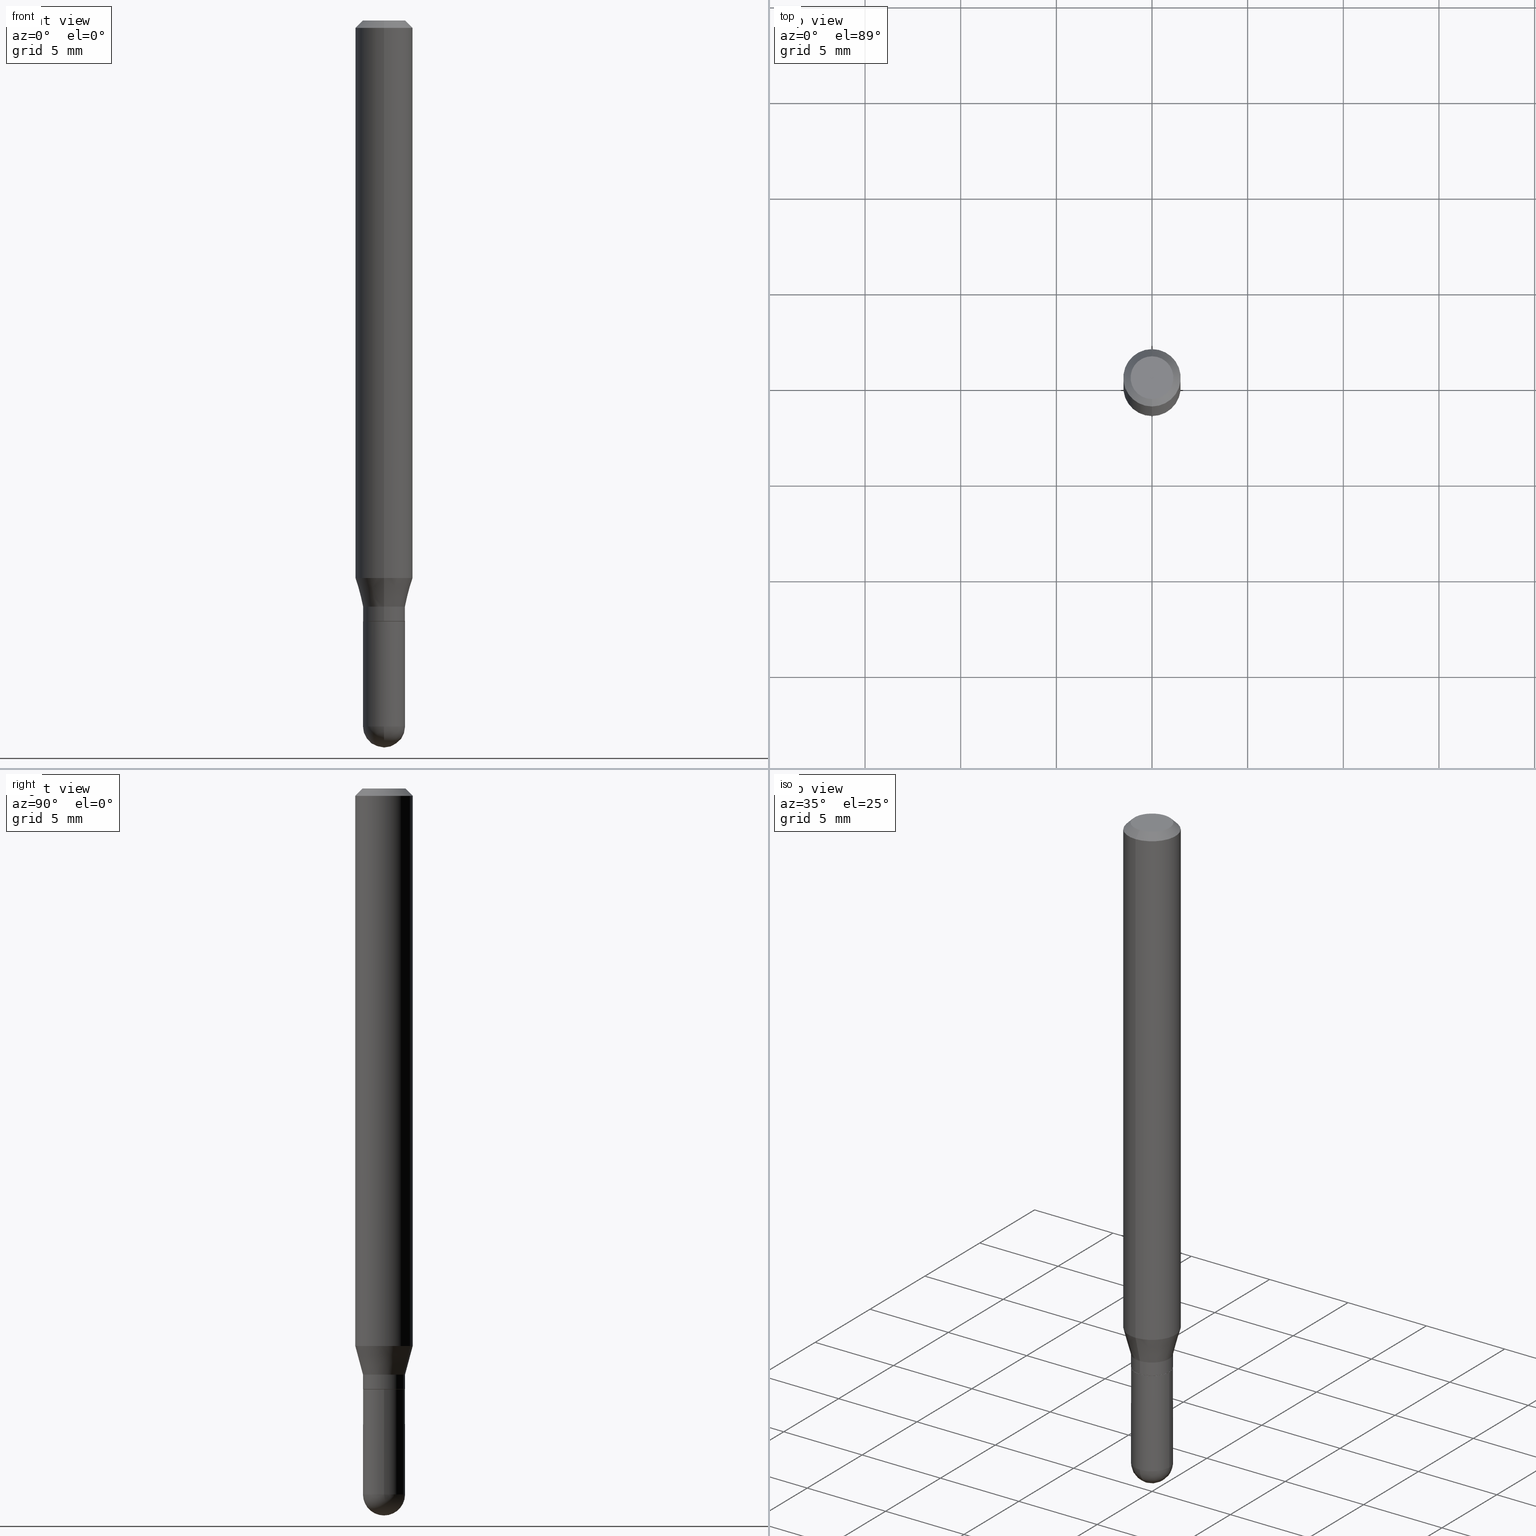
[diagram: canonical four-view strip — front | top / right | iso, engineering-drawing reading convention]
A machine part, canonical four-view strip (front | top / right | iso — engineering-drawing reading convention). The complete STEP part file that produces these views, byte-faithful:
ISO-10303-21;
HEADER;
FILE_DESCRIPTION (( 'STEP AP203' ),
    '1' );
FILE_NAME ('01991.STEP',
    '2024-03-07T19:52:30',
    ( '' ),
    ( '' ),
    'SwSTEP 2.0',
    'SolidWorks 2023',
    '' );
FILE_SCHEMA (( 'CONFIG_CONTROL_DESIGN' ));
ENDSEC;

DATA;
#1 = DIRECTION ( 'NONE',  ( -6.982962677686265922E-15, -1.000000000000000000, 3.491473598965565172E-15 ) ) ;
#2 = VERTEX_POINT ( 'NONE', #510 ) ;
#3 = CLOSED_SHELL ( 'NONE', ( #448, #455, #361, #104, #318 ) ) ;
#4 = EDGE_LOOP ( 'NONE', ( #164, #24, #70, #421 ) ) ;
#5 = AXIS2_PLACEMENT_3D ( 'NONE', #117, #474, #271 ) ;
#6 = ORIENTED_EDGE ( 'NONE', *, *, #42, .F. ) ;
#7 = DIRECTION ( 'NONE',  ( -2.445474210912764340E-29, 3.491473598965564778E-15, 1.000000000000000000 ) ) ;
#8 = EDGE_CURVE ( 'NONE', #126, #502, #437, .T. ) ;
#9 = PLANE ( 'NONE',  #84 ) ;
#10 = ADVANCED_FACE ( 'NONE', ( #335 ), #438, .T. ) ;
#11 = PERSON_AND_ORGANIZATION ( #346, #19 ) ;
#12 = AXIS2_PLACEMENT_3D ( 'NONE', #149, #497, #180 ) ;
#13 = APPROVAL_PERSON_ORGANIZATION ( #328, #193, #292 ) ;
#14 = PERSON_AND_ORGANIZATION ( #346, #19 ) ;
#15 = EDGE_CURVE ( 'NONE', #66, #384, #190, .T. ) ;
#16 = CALENDAR_DATE ( 2024, 7, 3 ) ;
#17 = CC_DESIGN_PERSON_AND_ORGANIZATION_ASSIGNMENT ( #456, #486, ( #363 ) ) ;
#18 = CARTESIAN_POINT ( 'NONE',  ( 3.023339766951449250E-29, -4.316508810401126129E-15, -1.236299999999999510 ) ) ;
#19 = ORGANIZATION ( 'UNSPECIFIED', 'UNSPECIFIED', '' ) ;
#20 = LOCAL_TIME ( 14, 52, 30.00000000000000000, #288 ) ;
#21 = CARTESIAN_POINT ( 'NONE',  ( 2.949486445781884438E-29, -4.211066307712367159E-15, -1.206099999999999728 ) ) ;
#22 = DIRECTION ( 'NONE',  ( -4.851104656540964275E-15, -0.7071067811865500152, -0.7071067811865450192 ) ) ;
#23 = CARTESIAN_POINT ( 'NONE',  ( -4.051124067684085231E-16, -0.05905000000000005383, -0.01499999999999981730 ) ) ;
#24 = ORIENTED_EDGE ( 'NONE', *, *, #401, .T. ) ;
#25 = DIRECTION ( 'NONE',  ( -1.000000000000000000, 6.982962677686265922E-15, -4.883557194083112340E-29 ) ) ;
#26 = CIRCLE ( 'NONE', #423, 0.05904999999999999832 ) ;
#27 = CIRCLE ( 'NONE', #112, 0.05904999999999999832 ) ;
#28 = DIRECTION ( 'NONE',  ( 6.982962677686265922E-15, 1.000000000000000000, -3.505890868245046092E-15 ) ) ;
#29 = DIRECTION ( 'NONE',  ( -2.445474210912764340E-29, 3.491473598965564778E-15, 1.000000000000000000 ) ) ;
#30 = ORIENTED_EDGE ( 'NONE', *, *, #98, .F. ) ;
#31 = EDGE_LOOP ( 'NONE', ( #463, #118, #259, #388 ) ) ;
#32 = DIRECTION ( 'NONE',  ( 1.000000000000000000, -6.982962677686265922E-15, 4.883557194083112901E-29 ) ) ;
#33 = LINE ( 'NONE', #354, #40 ) ;
#34 = LOCAL_TIME ( 14, 52, 30.00000000000000000, #201 ) ;
#35 = ORIENTED_EDGE ( 'NONE', *, *, #54, .T. ) ;
#36 = EDGE_LOOP ( 'NONE', ( #280, #101 ) ) ;
#37 = FACE_OUTER_BOUND ( 'NONE', #36, .T. ) ;
#38 = ORIENTED_EDGE ( 'NONE', *, *, #418, .F. ) ;
#39 = CARTESIAN_POINT ( 'NONE',  ( 3.041122909053529883E-16, 0.04279999999999567484, -1.236299999999999955 ) ) ;
#40 = VECTOR ( 'NONE', #505, 39.37007874015748143 ) ;
#41 = APPROVAL_STATUS ( 'not_yet_approved' ) ;
#42 = EDGE_CURVE ( 'NONE', #2, #233, #26, .T. ) ;
#43 = VECTOR ( 'NONE', #249, 39.37007874015748143 ) ;
#44 = AXIS2_PLACEMENT_3D ( 'NONE', #18, #417, #138 ) ;
#45 = APPROVAL_STATUS ( 'not_yet_approved' ) ;
#46 = CARTESIAN_POINT ( 'NONE',  ( 3.023333085086683703E-29, -4.316518379211780118E-15, -1.236299999999999955 ) ) ;
#47 = CALENDAR_DATE ( 2024, 7, 3 ) ;
#48 = CARTESIAN_POINT ( 'NONE',  ( 3.549074211593619303E-29, -5.077726809711629884E-15, -1.452799999999999869 ) ) ;
#49 = EDGE_LOOP ( 'NONE', ( #69, #143, #364, #478 ) ) ;
#50 = CARTESIAN_POINT ( 'NONE',  ( -2.988708026049418867E-16, -0.04280000000000431376, -1.236299999999999288 ) ) ;
#51 = CALENDAR_DATE ( 2024, 7, 3 ) ;
#52 = AXIS2_PLACEMENT_3D ( 'NONE', #504, #275, #445 ) ;
#53 = AXIS2_PLACEMENT_3D ( 'NONE', #46, #383, #96 ) ;
#54 = EDGE_CURVE ( 'NONE', #262, #233, #311, .T. ) ;
#55 = CARTESIAN_POINT ( 'NONE',  ( 0.04329999999999999127, -4.618880663155595580E-15, -1.236299999999999955 ) ) ;
#56 = CARTESIAN_POINT ( 'NONE',  ( -3.023622839437817384E-16, -0.04330000000000383542, -1.235799999999999788 ) ) ;
#57 = ORIENTED_EDGE ( 'NONE', *, *, #289, .F. ) ;
#58 = ORIENTED_EDGE ( 'NONE', *, *, #337, .F. ) ;
#59 = DIRECTION ( 'NONE',  ( 7.105427357601001070E-15, 1.000000000000000000, 0.000000000000000000 ) ) ;
#60 = CARTESIAN_POINT ( 'NONE',  ( 5.835533334487501631E-46, -8.331558142108499258E-32, -2.386258382299361800E-17 ) ) ;
#61 = VERTEX_POINT ( 'NONE', #416 ) ;
#62 = ADVANCED_FACE ( 'NONE', ( #218 ), #380, .T. ) ;
#63 = ORIENTED_EDGE ( 'NONE', *, *, #42, .T. ) ;
#64 = AXIS2_PLACEMENT_3D ( 'NONE', #268, #319, #1 ) ;
#65 = DIRECTION ( 'NONE',  ( -2.445474210912764340E-29, 3.491473598965564778E-15, 1.000000000000000000 ) ) ;
#66 = VERTEX_POINT ( 'NONE', #161 ) ;
#67 = DIRECTION ( 'NONE',  ( -6.982962677686265922E-15, -1.000000000000000000, 4.626330217890369336E-15 ) ) ;
#68 = CARTESIAN_POINT ( 'NONE',  ( 4.195754854663673989E-16, 0.05904999999999994975, -0.01500000000000023016 ) ) ;
#69 = ORIENTED_EDGE ( 'NONE', *, *, #156, .T. ) ;
#70 = ORIENTED_EDGE ( 'NONE', *, *, #98, .T. ) ;
#71 = LINE ( 'NONE', #237, #202 ) ;
#72 = ORIENTED_EDGE ( 'NONE', *, *, #15, .F. ) ;
#73 = DIRECTION ( 'NONE',  ( -6.982962677686265922E-15, -1.000000000000000000, 3.505890868245046092E-15 ) ) ;
#74 = CIRCLE ( 'NONE', #144, 0.04330000000000000515 ) ;
#75 = ADVANCED_FACE ( 'NONE', ( #281 ), #397, .T. ) ;
#76 = AXIS2_PLACEMENT_3D ( 'NONE', #454, #349, #232 ) ;
#77 = AXIS2_PLACEMENT_3D ( 'NONE', #342, #251, #28 ) ;
#78 = DIRECTION ( 'NONE',  ( -6.982962677686265922E-15, -1.000000000000000000, 6.382822415103419870E-15 ) ) ;
#79 = LINE ( 'NONE', #362, #442 ) ;
#80 = DIRECTION ( 'NONE',  ( -2.445468806185136597E-29, 3.491481338843145583E-15, 1.000000000000000000 ) ) ;
#81 = EDGE_LOOP ( 'NONE', ( #228, #63, #389, #57 ) ) ;
#82 = CARTESIAN_POINT ( 'NONE',  ( 2.949486445781884438E-29, -4.211066307712367159E-15, -1.206099999999999728 ) ) ;
#83 = EDGE_CURVE ( 'NONE', #139, #426, #236, .T. ) ;
#84 = AXIS2_PLACEMENT_3D ( 'NONE', #500, #189, #87 ) ;
#85 = CYLINDRICAL_SURFACE ( 'NONE', #177, 0.04330000000000000515 ) ;
#86 = CARTESIAN_POINT ( 'NONE',  ( -4.123439461173459788E-16, -0.05905000000000400207, -1.147320199780789585 ) ) ;
#87 = DIRECTION ( 'NONE',  ( 6.982962677686265922E-15, 1.000000000000000000, -3.491473598965565172E-15 ) ) ;
#88 = EDGE_CURVE ( 'NONE', #308, #391, #110, .T. ) ;
#89 = DIRECTION ( 'NONE',  ( -2.445474210912764340E-29, 3.491473598965565172E-15, 1.000000000000000000 ) ) ;
#90 = EDGE_CURVE ( 'NONE', #66, #348, #377, .T. ) ;
#91 = PERSON_AND_ORGANIZATION_ROLE ( 'creator' ) ;
#92 = CARTESIAN_POINT ( 'NONE',  ( -3.536586717851222218E-16, -0.04404999999999999888, 1.299368282114394844E-16 ) ) ;
#93 = DATE_AND_TIME ( #47, #34 ) ;
#94 = EDGE_CURVE ( 'NONE', #270, #348, #152, .T. ) ;
#95 = CARTESIAN_POINT ( 'NONE',  ( 2.805741960223202757E-29, -4.005838187094525059E-15, -1.147320199780789807 ) ) ;
#96 = DIRECTION ( 'NONE',  ( 1.000000000000000000, -6.982962677686269866E-15, 0.000000000000000000 ) ) ;
#97 = CIRCLE ( 'NONE', #403, 0.04330000000000000515 ) ;
#98 = EDGE_CURVE ( 'NONE', #345, #262, #287, .T. ) ;
#99 = SECURITY_CLASSIFICATION ( '', '', #216 ) ;
#100 = FACE_OUTER_BOUND ( 'NONE', #181, .T. ) ;
#101 = ORIENTED_EDGE ( 'NONE', *, *, #162, .F. ) ;
#102 = ORIENTED_EDGE ( 'NONE', *, *, #133, .F. ) ;
#103 = FACE_OUTER_BOUND ( 'NONE', #31, .T. ) ;
#104 = ADVANCED_FACE ( 'NONE', ( #405 ), #208, .T. ) ;
#105 = CARTESIAN_POINT ( 'NONE',  ( 2.805741960223202757E-29, -4.005838187094525059E-15, -1.147320199780789807 ) ) ;
#106 = CARTESIAN_POINT ( 'NONE',  ( 3.076650045841518654E-16, 0.04329999999999545324, -1.235800000000000232 ) ) ;
#107 = ORIENTED_EDGE ( 'NONE', *, *, #243, .F. ) ;
#108 = EDGE_LOOP ( 'NONE', ( #322, #304, #121, #222 ) ) ;
#109 = CLOSED_SHELL ( 'NONE', ( #205, #429, #274, #62, #75, #376, #10, #340, #459, #493, #239, #197 ) ) ;
#110 = LINE ( 'NONE', #207, #176 ) ;
#111 = DIRECTION ( 'NONE',  ( -6.982962677686265922E-15, -1.000000000000000000, 3.154558884138878184E-15 ) ) ;
#112 = AXIS2_PLACEMENT_3D ( 'NONE', #469, #427, #73 ) ;
#113 = DIRECTION ( 'NONE',  ( -6.982962677686265922E-15, -1.000000000000000000, 6.309117768277758736E-15 ) ) ;
#114 = ORIENTED_EDGE ( 'NONE', *, *, #83, .T. ) ;
#115 = DIRECTION ( 'NONE',  ( -1.807323732225332900E-15, -0.2588190451025185745, 0.9659258262890689783 ) ) ;
#116 = CARTESIAN_POINT ( 'NONE',  ( 2.949486445781884438E-29, -4.211066307712367159E-15, -1.206099999999999728 ) ) ;
#117 = CARTESIAN_POINT ( 'NONE',  ( 3.023333085086683703E-29, -4.316518379211780118E-15, -1.236299999999999955 ) ) ;
#118 = ORIENTED_EDGE ( 'NONE', *, *, #266, .T. ) ;
#119 = EDGE_CURVE ( 'NONE', #426, #61, #79, .T. ) ;
#120 = PLANE ( 'NONE',  #64 ) ;
#121 = ORIENTED_EDGE ( 'NONE', *, *, #8, .T. ) ;
#122 = APPROVAL ( #45, 'UNSPECIFIED' ) ;
#123 = AXIS2_PLACEMENT_3D ( 'NONE', #82, #323, #127 ) ;
#124 = VECTOR ( 'NONE', #324, 39.37007874015748143 ) ;
#125 = CC_DESIGN_APPROVAL ( #193, ( #99 ) ) ;
#126 = VERTEX_POINT ( 'NONE', #244 ) ;
#127 = DIRECTION ( 'NONE',  ( -6.982962677686265922E-15, -1.000000000000000000, 3.154558884138878184E-15 ) ) ;
#128 = CC_DESIGN_PERSON_AND_ORGANIZATION_ASSIGNMENT ( #491, #91, ( #163 ) ) ;
#129 = AXIS2_PLACEMENT_3D ( 'NONE', #48, #511, #159 ) ;
#130 = MANIFOLD_SOLID_BREP ( 'Body-Move/Copy2[1]', #3 ) ;
#131 = APPLICATION_PROTOCOL_DEFINITION ( 'international standard', 'config_control_design', 1994, #204 ) ;
#132 = DATE_AND_TIME ( #206, #153 ) ;
#133 = EDGE_CURVE ( 'NONE', #308, #384, #97, .T. ) ;
#134 = DIRECTION ( 'NONE',  ( 5.024295867788190974E-15, 0.7071067811865681119, 0.7071067811865270336 ) ) ;
#135 = DATE_AND_TIME ( #450, #20 ) ;
#136 = CONICAL_SURFACE ( 'NONE', #44, 0.04279999999999999083, 0.7853981633974739252 ) ;
#137 = DATE_TIME_ROLE ( 'creation_date' ) ;
#138 = DIRECTION ( 'NONE',  ( -6.982962677686265922E-15, -1.000000000000000000, 6.382822415103419870E-15 ) ) ;
#139 = VERTEX_POINT ( 'NONE', #140 ) ;
#140 = CARTESIAN_POINT ( 'NONE',  ( 3.058886477447519585E-16, 0.04279999999999567484, -1.236299999999999955 ) ) ;
#141 = CARTESIAN_POINT ( 'NONE',  ( -0.04330000000000000515, -4.386806229557427606E-15, -1.452799999999999869 ) ) ;
#142 = DIRECTION ( 'NONE',  ( -2.445474210912764340E-29, 3.491473598965564778E-15, 1.000000000000000000 ) ) ;
#143 = ORIENTED_EDGE ( 'NONE', *, *, #231, .T. ) ;
#144 = AXIS2_PLACEMENT_3D ( 'NONE', #367, #80, #433 ) ;
#145 = ORIENTED_EDGE ( 'NONE', *, *, #88, .F. ) ;
#146 = CONICAL_SURFACE ( 'NONE', #215, 0.04279999999999999083, 0.7853981633974739252 ) ;
#147 = EDGE_CURVE ( 'NONE', #233, #2, #394, .T. ) ;
#148 = DIRECTION ( 'NONE',  ( -2.445474210912764340E-29, 3.491473598965564778E-15, 1.000000000000000000 ) ) ;
#149 = CARTESIAN_POINT ( 'NONE',  ( 3.023339766951449250E-29, -4.316508810401126129E-15, -1.236299999999999510 ) ) ;
#150 = ORIENTED_EDGE ( 'NONE', *, *, #90, .T. ) ;
#151 = UNCERTAINTY_MEASURE_WITH_UNIT (LENGTH_MEASURE( 1.000000000000000082E-05 ), #358, 'distance_accuracy_value', 'NONE');
#152 = CIRCLE ( 'NONE', #343, 0.04330000000000000515 ) ;
#153 = LOCAL_TIME ( 14, 52, 30.00000000000000000, #399 ) ;
#154 =( LENGTH_UNIT ( ) NAMED_UNIT ( * ) SI_UNIT ( $, .METRE. ) );
#155 = ORIENTED_EDGE ( 'NONE', *, *, #247, .T. ) ;
#156 = EDGE_CURVE ( 'NONE', #262, #61, #182, .T. ) ;
#157 =( NAMED_UNIT ( * ) SI_UNIT ( $, .STERADIAN. ) SOLID_ANGLE_UNIT ( ) );
#158 = DIRECTION ( 'NONE',  ( -2.445474210912764340E-29, 3.491473598965564778E-15, 1.000000000000000000 ) ) ;
#159 = DIRECTION ( 'NONE',  ( -6.982962677686265922E-15, -1.000000000000000000, 6.309117768277758736E-15 ) ) ;
#160 = EDGE_CURVE ( 'NONE', #282, #126, #285, .T. ) ;
#161 = CARTESIAN_POINT ( 'NONE',  ( 3.653111575885362011E-29, -5.231559312003691987E-15, -1.496099999999999541 ) ) ;
#162 = EDGE_CURVE ( 'NONE', #139, #315, #168, .T. ) ;
#163 = PRODUCT_DEFINITION_FORMATION_WITH_SPECIFIED_SOURCE ( 'ANY', '', #501, .NOT_KNOWN. ) ;
#164 = ORIENTED_EDGE ( 'NONE', *, *, #119, .F. ) ;
#165 = DIRECTION ( 'NONE',  ( -6.982962677686265922E-15, -1.000000000000000000, 3.491473598965564778E-15 ) ) ;
#166 = CC_DESIGN_DATE_AND_TIME_ASSIGNMENT ( #210, #408, ( #99 ) ) ;
#167 = LINE ( 'NONE', #387, #124 ) ;
#168 = CIRCLE ( 'NONE', #234, 0.04279999999999999083 ) ;
#169 = CONICAL_SURFACE ( 'NONE', #77, 0.05904999999999999832, 0.7853981633974483900 ) ;
#170 = CC_DESIGN_SECURITY_CLASSIFICATION ( #99, ( #163 ) ) ;
#171 = COORDINATED_UNIVERSAL_TIME_OFFSET ( 5, 0, .BEHIND. ) ;
#172 = PERSON_AND_ORGANIZATION_ROLE ( 'design_supplier' ) ;
#173 = COORDINATED_UNIVERSAL_TIME_OFFSET ( 5, 0, .BEHIND. ) ;
#174 = CARTESIAN_POINT ( 'NONE',  ( 3.022117029845994399E-29, -4.314763073601644811E-15, -1.235800000000000010 ) ) ;
#175 = ADVANCED_BREP_SHAPE_REPRESENTATION ( '01991', ( #130, #283, #242 ), #507 ) ;
#176 = VECTOR ( 'NONE', #253, 39.37007874015748143 ) ;
#177 = AXIS2_PLACEMENT_3D ( 'NONE', #312, #447, #186 ) ;
#178 = DIRECTION ( 'NONE',  ( -2.445474210912764340E-29, 3.491473598965564778E-15, 1.000000000000000000 ) ) ;
#179 = DIRECTION ( 'NONE',  ( -6.982962677686266711E-15, -1.000000000000000000, 6.309117768277795812E-15 ) ) ;
#180 = DIRECTION ( 'NONE',  ( -6.982962677686265922E-15, -1.000000000000000000, 6.382822415103419870E-15 ) ) ;
#181 = EDGE_LOOP ( 'NONE', ( #468, #114, #107, #38 ) ) ;
#182 = CIRCLE ( 'NONE', #506, 0.04329999999999991495 ) ;
#183 = VERTEX_POINT ( 'NONE', #428 ) ;
#184 = DIRECTION ( 'NONE',  ( -2.445468806185136877E-29, 3.491481338843145188E-15, 1.000000000000000000 ) ) ;
#185 = ORIENTED_EDGE ( 'NONE', *, *, #327, .T. ) ;
#186 = DIRECTION ( 'NONE',  ( 1.000000000000000000, -6.982962677686267499E-15, 4.876176775795935232E-29 ) ) ;
#187 = ORIENTED_EDGE ( 'NONE', *, *, #401, .F. ) ;
#188 = ORIENTED_EDGE ( 'NONE', *, *, #119, .T. ) ;
#189 = DIRECTION ( 'NONE',  ( 2.445474210912763779E-29, -3.491473598965565172E-15, -1.000000000000000000 ) ) ;
#190 = CIRCLE ( 'NONE', #320, 0.04329999999999990107 ) ;
#191 = CARTESIAN_POINT ( 'NONE',  ( 0.000000000000000000, 0.000000000000000000, 0.000000000000000000 ) ) ;
#192 = DIRECTION ( 'NONE',  ( -6.982962677686265922E-15, -1.000000000000000000, 6.382822415103419870E-15 ) ) ;
#193 = APPROVAL ( #485, 'UNSPECIFIED' ) ;
#194 = ORIENTED_EDGE ( 'NONE', *, *, #243, .T. ) ;
#195 = MECHANICAL_CONTEXT ( 'NONE', #204, 'mechanical' ) ;
#196 = EDGE_LOOP ( 'NONE', ( #155, #350 ) ) ;
#197 = ADVANCED_FACE ( 'NONE', ( #277 ), #406, .T. ) ;
#198 = CARTESIAN_POINT ( 'NONE',  ( 0.000000000000000000, 0.000000000000000000, 0.000000000000000000 ) ) ;
#199 = CIRCLE ( 'NONE', #5, 0.04329999999999999127 ) ;
#200 = FACE_OUTER_BOUND ( 'NONE', #360, .T. ) ;
#201 = COORDINATED_UNIVERSAL_TIME_OFFSET ( 5, 0, .BEHIND. ) ;
#202 = VECTOR ( 'NONE', #446, 39.37007874015748143 ) ;
#203 = CIRCLE ( 'NONE', #453, 0.04404999999999999888 ) ;
#204 = APPLICATION_CONTEXT ( 'configuration controlled 3d designs of mechanical parts and assemblies' ) ;
#205 = ADVANCED_FACE ( 'NONE', ( #509 ), #434, .T. ) ;
#206 = CALENDAR_DATE ( 2024, 7, 3 ) ;
#207 = CARTESIAN_POINT ( 'NONE',  ( 0.04330000000000000515, -3.023622839438154129E-16, 2.111384543919640277E-30 ) ) ;
#208 = SPHERICAL_SURFACE ( 'NONE', #129, 0.04329999999999990107 ) ;
#209 = DATE_AND_TIME ( #16, #256 ) ;
#210 = DATE_AND_TIME ( #51, #396 ) ;
#211 = PRODUCT_RELATED_PRODUCT_CATEGORY ( 'detail', '', ( #501 ) ) ;
#212 = DIRECTION ( 'NONE',  ( 4.937700262164548042E-15, 0.7071067811865451302, -0.7071067811865499042 ) ) ;
#213 = CARTESIAN_POINT ( 'NONE',  ( -3.023622839437794704E-16, -0.04330000000000502197, -1.452799999999999647 ) ) ;
#214 = AXIS2_PLACEMENT_3D ( 'NONE', #95, #254, #443 ) ;
#215 = AXIS2_PLACEMENT_3D ( 'NONE', #484, #158, #78 ) ;
#216 = SECURITY_CLASSIFICATION_LEVEL ( 'unclassified' ) ;
#217 = FACE_OUTER_BOUND ( 'NONE', #196, .T. ) ;
#218 = FACE_OUTER_BOUND ( 'NONE', #356, .T. ) ;
#219 = DIRECTION ( 'NONE',  ( 1.000000000000000000, -6.982962677686267499E-15, 0.000000000000000000 ) ) ;
#220 = EDGE_LOOP ( 'NONE', ( #309, #496, #35, #6 ) ) ;
#221 = CARTESIAN_POINT ( 'NONE',  ( 0.04330000000000000515, -4.996833518085365697E-15, -1.452799999999999869 ) ) ;
#222 = ORIENTED_EDGE ( 'NONE', *, *, #289, .T. ) ;
#223 = CARTESIAN_POINT ( 'NONE',  ( 0.000000000000000000, 0.000000000000000000, 0.000000000000000000 ) ) ;
#224 = AXIS2_PLACEMENT_3D ( 'NONE', #415, #490, #219 ) ;
#225 = FACE_OUTER_BOUND ( 'NONE', #220, .T. ) ;
#226 = ORIENTED_EDGE ( 'NONE', *, *, #512, .T. ) ;
#227 = ORIENTED_EDGE ( 'NONE', *, *, #94, .F. ) ;
#228 = ORIENTED_EDGE ( 'NONE', *, *, #512, .F. ) ;
#229 = EDGE_CURVE ( 'NONE', #384, #270, #74, .T. ) ;
#230 = CARTESIAN_POINT ( 'NONE',  ( 0.000000000000000000, 0.000000000000000000, 0.000000000000000000 ) ) ;
#231 = EDGE_CURVE ( 'NONE', #61, #2, #71, .T. ) ;
#232 = DIRECTION ( 'NONE',  ( -6.982962677686265922E-15, -1.000000000000000000, 3.154558884138878184E-15 ) ) ;
#233 = VERTEX_POINT ( 'NONE', #86 ) ;
#234 = AXIS2_PLACEMENT_3D ( 'NONE', #393, #269, #192 ) ;
#235 = ORIENTED_EDGE ( 'NONE', *, *, #160, .T. ) ;
#236 = LINE ( 'NONE', #39, #487 ) ;
#237 = CARTESIAN_POINT ( 'NONE',  ( 3.076650045841522105E-16, 0.04329999999999570998, -1.206099999999999950 ) ) ;
#238 = EDGE_LOOP ( 'NONE', ( #475, #307, #466, #187 ) ) ;
#239 = ADVANCED_FACE ( 'NONE', ( #368 ), #146, .T. ) ;
#240 = DIRECTION ( 'NONE',  ( -2.445474210912764340E-29, 3.491473598965564778E-15, 1.000000000000000000 ) ) ;
#241 = VECTOR ( 'NONE', #115, 39.37007874015748143 ) ;
#242 = AXIS2_PLACEMENT_3D ( 'NONE', #230, #284, #444 ) ;
#243 = EDGE_CURVE ( 'NONE', #345, #426, #278, .T. ) ;
#244 = CARTESIAN_POINT ( 'NONE',  ( 3.599717260347271507E-16, 0.04404999999999999888, -1.776619958574267450E-16 ) ) ;
#245 = PERSON_AND_ORGANIZATION ( #346, #19 ) ;
#246 = CONICAL_SURFACE ( 'NONE', #333, 0.04329999999999991495, 0.2617993877991506846 ) ;
#247 = EDGE_CURVE ( 'NONE', #391, #263, #494, .T. ) ;
#248 = APPROVAL ( #41, 'UNSPECIFIED' ) ;
#249 = DIRECTION ( 'NONE',  ( -2.445474210912764340E-29, 3.491473598965565172E-15, 1.000000000000000000 ) ) ;
#250 = PERSON_AND_ORGANIZATION_ROLE ( 'design_owner' ) ;
#251 = DIRECTION ( 'NONE',  ( 2.445474210912764340E-29, -3.491473598965564778E-15, -1.000000000000000000 ) ) ;
#252 = APPROVAL_ROLE ( '' ) ;
#253 = DIRECTION ( 'NONE',  ( -2.445468806185136877E-29, 3.491481338843145188E-15, 1.000000000000000000 ) ) ;
#254 = DIRECTION ( 'NONE',  ( -2.445474210912764340E-29, 3.491473598965564778E-15, 1.000000000000000000 ) ) ;
#255 = DIRECTION ( 'NONE',  ( 1.000000000000000000, -6.982962677686267499E-15, 4.876176775795935232E-29 ) ) ;
#256 = LOCAL_TIME ( 14, 52, 30.00000000000000000, #173 ) ;
#257 = EDGE_CURVE ( 'NONE', #315, #139, #310, .T. ) ;
#258 = CARTESIAN_POINT ( 'NONE',  ( 3.023622839438454882E-16, 0.04329999999999567528, -1.236300000000000177 ) ) ;
#259 = ORIENTED_EDGE ( 'NONE', *, *, #476, .T. ) ;
#260 = DIRECTION ( 'NONE',  ( -6.982962677686265922E-15, -1.000000000000000000, 3.154558884138878184E-15 ) ) ;
#261 = CC_DESIGN_PERSON_AND_ORGANIZATION_ASSIGNMENT ( #245, #172, ( #163 ) ) ;
#262 = VERTEX_POINT ( 'NONE', #296 ) ;
#263 = VERTEX_POINT ( 'NONE', #411 ) ;
#264 = FACE_OUTER_BOUND ( 'NONE', #273, .T. ) ;
#265 = ORIENTED_EDGE ( 'NONE', *, *, #451, .F. ) ;
#266 = EDGE_CURVE ( 'NONE', #282, #183, #495, .T. ) ;
#267 = AXIS2_PLACEMENT_3D ( 'NONE', #436, #32, #113 ) ;
#268 = CARTESIAN_POINT ( 'NONE',  ( 3.023339766951449250E-29, -4.316508810401126129E-15, -1.236299999999999510 ) ) ;
#269 = DIRECTION ( 'NONE',  ( -2.445474210912764340E-29, 3.491473598965564778E-15, 1.000000000000000000 ) ) ;
#270 = VERTEX_POINT ( 'NONE', #141 ) ;
#271 = DIRECTION ( 'NONE',  ( 1.000000000000000000, -6.982962677686269866E-15, 0.000000000000000000 ) ) ;
#272 = DIMENSIONAL_EXPONENTS ( 1.000000000000000000, 0.000000000000000000, 0.000000000000000000, 0.000000000000000000, 0.000000000000000000, 0.000000000000000000, 0.000000000000000000 ) ;
#273 = EDGE_LOOP ( 'NONE', ( #503, #313, #441, #431, #265 ) ) ;
#274 = ADVANCED_FACE ( 'NONE', ( #103 ), #286, .T. ) ;
#275 = DIRECTION ( 'NONE',  ( -2.445474210912764340E-29, 3.491473598965564778E-15, 1.000000000000000000 ) ) ;
#276 =( NAMED_UNIT ( * ) PLANE_ANGLE_UNIT ( ) SI_UNIT ( $, .RADIAN. ) );
#277 = FACE_OUTER_BOUND ( 'NONE', #4, .T. ) ;
#278 = CIRCLE ( 'NONE', #425, 0.04329999999999964433 ) ;
#279 = AXIS2_PLACEMENT_3D ( 'NONE', #258, #457, #382 ) ;
#280 = ORIENTED_EDGE ( 'NONE', *, *, #257, .F. ) ;
#281 = FACE_OUTER_BOUND ( 'NONE', #49, .T. ) ;
#282 = VERTEX_POINT ( 'NONE', #92 ) ;
#283 = MANIFOLD_SOLID_BREP ( 'Body-Move/Copy2[2]', #109 ) ;
#284 = DIRECTION ( 'NONE',  ( 0.000000000000000000, 0.000000000000000000, 1.000000000000000000 ) ) ;
#285 = CIRCLE ( 'NONE', #52, 0.04404999999999999888 ) ;
#286 = CONICAL_SURFACE ( 'NONE', #439, 0.05904999999999999832, 0.7853981633974483900 ) ;
#287 = LINE ( 'NONE', #400, #43 ) ;
#288 = COORDINATED_UNIVERSAL_TIME_OFFSET ( 5, 0, .BEHIND. ) ;
#289 = EDGE_CURVE ( 'NONE', #502, #183, #299, .T. ) ;
#290 = VECTOR ( 'NONE', #22, 39.37007874015748143 ) ;
#291 = DIRECTION ( 'NONE',  ( -2.445474210912764340E-29, 3.491473598965564778E-15, 1.000000000000000000 ) ) ;
#292 = APPROVAL_ROLE ( '' ) ;
#293 = DIRECTION ( 'NONE',  ( -2.445468806185136597E-29, 3.491481338843145583E-15, 1.000000000000000000 ) ) ;
#294 = APPLICATION_PROTOCOL_DEFINITION ( 'international standard', 'config_control_design', 1994, #424 ) ;
#295 = CARTESIAN_POINT ( 'NONE',  ( 3.552777081625765848E-29, -5.072424089071321929E-15, -1.452799999999999869 ) ) ;
#296 = CARTESIAN_POINT ( 'NONE',  ( -3.023622839437852389E-16, -0.04330000000000412685, -1.206099999999999506 ) ) ;
#297 = LINE ( 'NONE', #492, #462 ) ;
#298 = AXIS2_PLACEMENT_3D ( 'NONE', #366, #7, #449 ) ;
#299 = CIRCLE ( 'NONE', #365, 0.05904999999999999832 ) ;
#300 = DIRECTION ( 'NONE',  ( -6.982962677686265922E-15, -1.000000000000000000, 3.491473598965564778E-15 ) ) ;
#301 = CC_DESIGN_PERSON_AND_ORGANIZATION_ASSIGNMENT ( #390, #250, ( #501 ) ) ;
#302 = DIRECTION ( 'NONE',  ( 2.445474210912764340E-29, -3.491473598965564778E-15, -1.000000000000000000 ) ) ;
#303 = ORIENTED_EDGE ( 'NONE', *, *, #15, .T. ) ;
#304 = ORIENTED_EDGE ( 'NONE', *, *, #327, .F. ) ;
#305 = DIRECTION ( 'NONE',  ( -2.445474210912764340E-29, 3.491473598965564778E-15, 1.000000000000000000 ) ) ;
#306 = FACE_OUTER_BOUND ( 'NONE', #108, .T. ) ;
#307 = ORIENTED_EDGE ( 'NONE', *, *, #162, .T. ) ;
#308 = VERTEX_POINT ( 'NONE', #221 ) ;
#309 = ORIENTED_EDGE ( 'NONE', *, *, #231, .F. ) ;
#310 = CIRCLE ( 'NONE', #12, 0.04279999999999999083 ) ;
#311 = LINE ( 'NONE', #473, #241 ) ;
#312 = CARTESIAN_POINT ( 'NONE',  ( 0.000000000000000000, 0.000000000000000000, 0.000000000000000000 ) ) ;
#313 = ORIENTED_EDGE ( 'NONE', *, *, #94, .T. ) ;
#314 = ORIENTED_EDGE ( 'NONE', *, *, #229, .T. ) ;
#315 = VERTEX_POINT ( 'NONE', #50 ) ;
#316 = ORIENTED_EDGE ( 'NONE', *, *, #483, .F. ) ;
#317 = CARTESIAN_POINT ( 'NONE',  ( 3.022117029845994399E-29, -4.314763073601644811E-15, -1.235800000000000010 ) ) ;
#318 = ADVANCED_FACE ( 'NONE', ( #264 ), #336, .T. ) ;
#319 = DIRECTION ( 'NONE',  ( -2.445474210912763779E-29, 3.491473598965565172E-15, 1.000000000000000000 ) ) ;
#320 = AXIS2_PLACEMENT_3D ( 'NONE', #353, #458, #59 ) ;
#321 = CIRCLE ( 'NONE', #471, 0.04329999999999964433 ) ;
#322 = ORIENTED_EDGE ( 'NONE', *, *, #266, .F. ) ;
#323 = DIRECTION ( 'NONE',  ( -2.445474210912764340E-29, 3.491473598965564778E-15, 1.000000000000000000 ) ) ;
#324 = DIRECTION ( 'NONE',  ( -2.445474210912764340E-29, 3.491473598965565172E-15, 1.000000000000000000 ) ) ;
#325 = CC_DESIGN_APPROVAL ( #122, ( #163 ) ) ;
#326 = APPROVAL_DATE_TIME ( #209, #248 ) ;
#327 = EDGE_CURVE ( 'NONE', #126, #282, #203, .T. ) ;
#328 = PERSON_AND_ORGANIZATION ( #346, #19 ) ;
#329 = DIRECTION ( 'NONE',  ( -6.982962677686265922E-15, -1.000000000000000000, 0.000000000000000000 ) ) ;
#330 = DIRECTION ( 'NONE',  ( 1.000000000000000000, -6.982962677686267499E-15, 0.000000000000000000 ) ) ;
#331 = AXIS2_PLACEMENT_3D ( 'NONE', #223, #291, #165 ) ;
#332 = CARTESIAN_POINT ( 'NONE',  ( 3.668211316369151799E-31, -5.237210398448355894E-17, -0.01500000000000002373 ) ) ;
#333 = AXIS2_PLACEMENT_3D ( 'NONE', #21, #178, #260 ) ;
#334 = DIRECTION ( 'NONE',  ( -2.445468806185136597E-29, 3.491481338843145583E-15, 1.000000000000000000 ) ) ;
#335 = FACE_OUTER_BOUND ( 'NONE', #81, .T. ) ;
#336 = CYLINDRICAL_SURFACE ( 'NONE', #344, 0.04330000000000000515 ) ;
#337 = EDGE_CURVE ( 'NONE', #348, #308, #357, .T. ) ;
#338 = CARTESIAN_POINT ( 'NONE',  ( 3.549074211593619303E-29, -5.077726809711629884E-15, -1.452799999999999869 ) ) ;
#339 = CARTESIAN_POINT ( 'NONE',  ( -2.988708026049418867E-16, -0.04280000000000431376, -1.236299999999999288 ) ) ;
#340 = ADVANCED_FACE ( 'NONE', ( #306 ), #169, .T. ) ;
#341 = ORIENTED_EDGE ( 'NONE', *, *, #410, .T. ) ;
#342 = CARTESIAN_POINT ( 'NONE',  ( 3.668211316369151799E-31, -5.237210398448355894E-17, -0.01500000000000002373 ) ) ;
#343 = AXIS2_PLACEMENT_3D ( 'NONE', #375, #334, #413 ) ;
#344 = AXIS2_PLACEMENT_3D ( 'NONE', #378, #293, #255 ) ;
#345 = VERTEX_POINT ( 'NONE', #56 ) ;
#346 = PERSON ( 'UNSPECIFIED', 'UNSPECIFIED', 'UNSPECIFIED', ('UNSPECIFIED'), ('UNSPECIFIED'), ('UNSPECIFIED') ) ;
#347 = LINE ( 'NONE', #339, #372 ) ;
#348 = VERTEX_POINT ( 'NONE', #213 ) ;
#349 = DIRECTION ( 'NONE',  ( -2.445474210912764340E-29, 3.491473598965564778E-15, 1.000000000000000000 ) ) ;
#350 = ORIENTED_EDGE ( 'NONE', *, *, #451, .T. ) ;
#351 = DIRECTION ( 'NONE',  ( -6.982962677686266711E-15, -1.000000000000000000, 6.309117768277795812E-15 ) ) ;
#352 = ORIENTED_EDGE ( 'NONE', *, *, #90, .F. ) ;
#353 = CARTESIAN_POINT ( 'NONE',  ( 3.549074211593619303E-29, -5.077726809711629884E-15, -1.452799999999999869 ) ) ;
#354 = CARTESIAN_POINT ( 'NONE',  ( 4.195754854663390985E-16, 0.05904999999999999832, -2.061715160189165873E-16 ) ) ;
#355 = ORIENTED_EDGE ( 'NONE', *, *, #133, .T. ) ;
#356 = EDGE_LOOP ( 'NONE', ( #395, #226, #374, #316 ) ) ;
#357 = CIRCLE ( 'NONE', #224, 0.04330000000000000515 ) ;
#358 =( CONVERSION_BASED_UNIT ( 'INCH', #508 ) LENGTH_UNIT ( ) NAMED_UNIT ( #272 ) );
#359 = EDGE_LOOP ( 'NONE', ( #185, #235 ) ) ;
#360 = EDGE_LOOP ( 'NONE', ( #352, #303, #102, #58 ) ) ;
#361 = ADVANCED_FACE ( 'NONE', ( #217 ), #465, .F. ) ;
#362 = CARTESIAN_POINT ( 'NONE',  ( 3.076650045841217901E-16, 0.04329999999999978311, -1.511808068352082052E-16 ) ) ;
#363 = PRODUCT_DEFINITION ( 'UNKNOWN', '', #163, #398 ) ;
#364 = ORIENTED_EDGE ( 'NONE', *, *, #147, .F. ) ;
#365 = AXIS2_PLACEMENT_3D ( 'NONE', #332, #142, #461 ) ;
#366 = CARTESIAN_POINT ( 'NONE',  ( 0.000000000000000000, 0.000000000000000000, 0.000000000000000000 ) ) ;
#367 = CARTESIAN_POINT ( 'NONE',  ( 3.552777081625765848E-29, -5.072424089071321929E-15, -1.452799999999999869 ) ) ;
#368 = FACE_OUTER_BOUND ( 'NONE', #238, .T. ) ;
#369 = SPHERICAL_SURFACE ( 'NONE', #267, 0.04329999999999990107 ) ;
#370 = APPROVAL_DATE_TIME ( #132, #122 ) ;
#371 = AXIS2_PLACEMENT_3D ( 'NONE', #198, #240, #482 ) ;
#372 = VECTOR ( 'NONE', #467, 39.37007874015748143 ) ;
#373 = APPROVAL_ROLE ( '' ) ;
#374 = ORIENTED_EDGE ( 'NONE', *, *, #476, .F. ) ;
#375 = CARTESIAN_POINT ( 'NONE',  ( 3.552777081625765848E-29, -5.072424089071321929E-15, -1.452799999999999869 ) ) ;
#376 = ADVANCED_FACE ( 'NONE', ( #225 ), #246, .T. ) ;
#377 = CIRCLE ( 'NONE', #470, 0.04329999999999990107 ) ;
#378 = CARTESIAN_POINT ( 'NONE',  ( 0.000000000000000000, 0.000000000000000000, 0.000000000000000000 ) ) ;
#379 = APPROVAL_PERSON_ORGANIZATION ( #452, #248, #373 ) ;
#380 = CYLINDRICAL_SURFACE ( 'NONE', #331, 0.05904999999999999832 ) ;
#381 = SHAPE_DEFINITION_REPRESENTATION ( #420, #175 ) ;
#382 = DIRECTION ( 'NONE',  ( -1.000000000000000000, 6.982962677686265922E-15, -4.876176775795935793E-29 ) ) ;
#383 = DIRECTION ( 'NONE',  ( -2.445468806185136597E-29, 3.491481338843145583E-15, 1.000000000000000000 ) ) ;
#384 = VERTEX_POINT ( 'NONE', #419 ) ;
#385 = CARTESIAN_POINT ( 'NONE',  ( 3.668211316369151799E-31, -5.237210398448355894E-17, -0.01500000000000002373 ) ) ;
#386 = APPROVAL_PERSON_ORGANIZATION ( #14, #122, #252 ) ;
#387 = CARTESIAN_POINT ( 'NONE',  ( -4.123439461173739834E-16, -0.05904999999999999832, 2.061715160189165873E-16 ) ) ;
#388 = ORIENTED_EDGE ( 'NONE', *, *, #8, .F. ) ;
#389 = ORIENTED_EDGE ( 'NONE', *, *, #483, .T. ) ;
#390 = PERSON_AND_ORGANIZATION ( #346, #19 ) ;
#391 = VERTEX_POINT ( 'NONE', #55 ) ;
#392 = FACE_OUTER_BOUND ( 'NONE', #464, .T. ) ;
#393 = CARTESIAN_POINT ( 'NONE',  ( 3.023339766951449250E-29, -4.316508810401126129E-15, -1.236299999999999510 ) ) ;
#394 = CIRCLE ( 'NONE', #214, 0.05904999999999999832 ) ;
#395 = ORIENTED_EDGE ( 'NONE', *, *, #147, .T. ) ;
#396 = LOCAL_TIME ( 14, 52, 30.00000000000000000, #171 ) ;
#397 = CONICAL_SURFACE ( 'NONE', #123, 0.04329999999999991495, 0.2617993877991506846 ) ;
#398 = DESIGN_CONTEXT ( 'detailed design', #424, 'design' ) ;
#399 = COORDINATED_UNIVERSAL_TIME_OFFSET ( 5, 0, .BEHIND. ) ;
#400 = CARTESIAN_POINT ( 'NONE',  ( -3.023622839438137365E-16, -0.04329999999999978311, 1.511808068352082052E-16 ) ) ;
#401 = EDGE_CURVE ( 'NONE', #426, #345, #321, .T. ) ;
#402 = APPROVAL_DATE_TIME ( #135, #193 ) ;
#403 = AXIS2_PLACEMENT_3D ( 'NONE', #295, #489, #330 ) ;
#404 = CC_DESIGN_APPROVAL ( #248, ( #363 ) ) ;
#405 = FACE_OUTER_BOUND ( 'NONE', #472, .T. ) ;
#406 = CYLINDRICAL_SURFACE ( 'NONE', #298, 0.04329999999999978311 ) ;
#407 = CARTESIAN_POINT ( 'NONE',  ( 4.123439461173743285E-16, 0.05904999999999994975, -0.01500000000000023016 ) ) ;
#408 = DATE_TIME_ROLE ( 'classification_date' ) ;
#409 = EDGE_LOOP ( 'NONE', ( #194, #188, #498, #30 ) ) ;
#410 = EDGE_CURVE ( 'NONE', #270, #263, #297, .T. ) ;
#411 = CARTESIAN_POINT ( 'NONE',  ( -0.04329999999999999127, -4.386806229557427606E-15, -1.236299999999999955 ) ) ;
#412 = PERSON_AND_ORGANIZATION_ROLE ( 'classification_officer' ) ;
#413 = DIRECTION ( 'NONE',  ( 1.000000000000000000, -6.982962677686267499E-15, 0.000000000000000000 ) ) ;
#414 = DIRECTION ( 'NONE',  ( -2.445474210912764340E-29, 3.491473598965564778E-15, 1.000000000000000000 ) ) ;
#415 = CARTESIAN_POINT ( 'NONE',  ( 3.552777081625765848E-29, -5.072424089071321929E-15, -1.452799999999999869 ) ) ;
#416 = CARTESIAN_POINT ( 'NONE',  ( 3.636202450252598047E-16, 0.04329999999999570998, -1.206099999999999950 ) ) ;
#417 = DIRECTION ( 'NONE',  ( -2.445474210912764340E-29, 3.491473598965564778E-15, 1.000000000000000000 ) ) ;
#418 = EDGE_CURVE ( 'NONE', #315, #345, #347, .T. ) ;
#419 = CARTESIAN_POINT ( 'NONE',  ( 3.076650045841584721E-16, 0.04329999999999488425, -1.452800000000000091 ) ) ;
#420 = PRODUCT_DEFINITION_SHAPE ( 'NONE', 'NONE',  #363 ) ;
#421 = ORIENTED_EDGE ( 'NONE', *, *, #440, .F. ) ;
#422 = DIRECTION ( 'NONE',  ( 6.982962677686265922E-15, 1.000000000000000000, -3.505890868245046092E-15 ) ) ;
#423 = AXIS2_PLACEMENT_3D ( 'NONE', #105, #414, #67 ) ;
#424 = APPLICATION_CONTEXT ( 'configuration controlled 3d designs of mechanical parts and assemblies' ) ;
#425 = AXIS2_PLACEMENT_3D ( 'NONE', #317, #29, #351 ) ;
#426 = VERTEX_POINT ( 'NONE', #106 ) ;
#427 = DIRECTION ( 'NONE',  ( -2.445474210912764340E-29, 3.491473598965564778E-15, 1.000000000000000000 ) ) ;
#428 = CARTESIAN_POINT ( 'NONE',  ( -4.123439461173736383E-16, -0.05905000000000005383, -0.01499999999999981730 ) ) ;
#429 = ADVANCED_FACE ( 'NONE', ( #100 ), #136, .T. ) ;
#430 = FACE_OUTER_BOUND ( 'NONE', #359, .T. ) ;
#431 = ORIENTED_EDGE ( 'NONE', *, *, #88, .T. ) ;
#432 = ORIENTED_EDGE ( 'NONE', *, *, #247, .F. ) ;
#433 = DIRECTION ( 'NONE',  ( 1.000000000000000000, -6.982962677686267499E-15, 0.000000000000000000 ) ) ;
#434 = CYLINDRICAL_SURFACE ( 'NONE', #371, 0.04329999999999978311 ) ;
#435 = CC_DESIGN_DATE_AND_TIME_ASSIGNMENT ( #93, #137, ( #363 ) ) ;
#436 = CARTESIAN_POINT ( 'NONE',  ( 3.549074211593619303E-29, -5.077726809711629884E-15, -1.452799999999999869 ) ) ;
#437 = LINE ( 'NONE', #407, #460 ) ;
#438 = CYLINDRICAL_SURFACE ( 'NONE', #477, 0.05904999999999999832 ) ;
#439 = AXIS2_PLACEMENT_3D ( 'NONE', #385, #302, #422 ) ;
#440 = EDGE_CURVE ( 'NONE', #61, #262, #479, .T. ) ;
#441 = ORIENTED_EDGE ( 'NONE', *, *, #337, .T. ) ;
#442 = VECTOR ( 'NONE', #89, 39.37007874015748143 ) ;
#443 = DIRECTION ( 'NONE',  ( -6.982962677686265922E-15, -1.000000000000000000, 4.626330217890369336E-15 ) ) ;
#444 = DIRECTION ( 'NONE',  ( 1.000000000000000000, 0.000000000000000000, 0.000000000000000000 ) ) ;
#445 = DIRECTION ( 'NONE',  ( -6.982962677686265133E-15, -1.000000000000000000, 3.491473598965564384E-15 ) ) ;
#446 = DIRECTION ( 'NONE',  ( 1.839019923739603076E-15, 0.2588190451025253469, 0.9659258262890670910 ) ) ;
#447 = DIRECTION ( 'NONE',  ( -2.445468806185136597E-29, 3.491481338843145583E-15, 1.000000000000000000 ) ) ;
#448 = ADVANCED_FACE ( 'NONE', ( #392 ), #85, .T. ) ;
#449 = DIRECTION ( 'NONE',  ( -6.982962677686264344E-15, -1.000000000000000000, 3.491473598965564778E-15 ) ) ;
#450 = CALENDAR_DATE ( 2024, 7, 3 ) ;
#451 = EDGE_CURVE ( 'NONE', #263, #391, #199, .T. ) ;
#452 = PERSON_AND_ORGANIZATION ( #346, #19 ) ;
#453 = AXIS2_PLACEMENT_3D ( 'NONE', #60, #148, #488 ) ;
#454 = CARTESIAN_POINT ( 'NONE',  ( 2.949486445781884438E-29, -4.211066307712367159E-15, -1.206099999999999728 ) ) ;
#455 = ADVANCED_FACE ( 'NONE', ( #200 ), #369, .T. ) ;
#456 = PERSON_AND_ORGANIZATION ( #346, #19 ) ;
#457 = DIRECTION ( 'NONE',  ( 2.438088387897960049E-29, -3.491481338843145188E-15, -1.000000000000000000 ) ) ;
#458 = DIRECTION ( 'NONE',  ( 1.000000000000000000, -7.105427357601001070E-15, 4.926315508542082329E-29 ) ) ;
#459 = ADVANCED_FACE ( 'NONE', ( #430 ), #9, .F. ) ;
#460 = VECTOR ( 'NONE', #212, 39.37007874015748143 ) ;
#461 = DIRECTION ( 'NONE',  ( -6.982962677686265922E-15, -1.000000000000000000, 3.505890868245046092E-15 ) ) ;
#462 = VECTOR ( 'NONE', #184, 39.37007874015748143 ) ;
#463 = ORIENTED_EDGE ( 'NONE', *, *, #160, .F. ) ;
#464 = EDGE_LOOP ( 'NONE', ( #314, #341, #432, #145, #355 ) ) ;
#465 = PLANE ( 'NONE',  #279 ) ;
#466 = ORIENTED_EDGE ( 'NONE', *, *, #418, .T. ) ;
#467 = DIRECTION ( 'NONE',  ( -4.937700262164674260E-15, -0.7071067811865632269, 0.7071067811865319186 ) ) ;
#468 = ORIENTED_EDGE ( 'NONE', *, *, #257, .T. ) ;
#469 = CARTESIAN_POINT ( 'NONE',  ( 3.668211316369151799E-31, -5.237210398448355894E-17, -0.01500000000000002373 ) ) ;
#470 = AXIS2_PLACEMENT_3D ( 'NONE', #338, #25, #329 ) ;
#471 = AXIS2_PLACEMENT_3D ( 'NONE', #174, #65, #179 ) ;
#472 = EDGE_LOOP ( 'NONE', ( #72, #150, #227, #480 ) ) ;
#473 = CARTESIAN_POINT ( 'NONE',  ( -3.023622839437852389E-16, -0.04330000000000412685, -1.206099999999999506 ) ) ;
#474 = DIRECTION ( 'NONE',  ( -2.445468806185136597E-29, 3.491481338843145583E-15, 1.000000000000000000 ) ) ;
#475 = ORIENTED_EDGE ( 'NONE', *, *, #83, .F. ) ;
#476 = EDGE_CURVE ( 'NONE', #183, #502, #27, .T. ) ;
#477 = AXIS2_PLACEMENT_3D ( 'NONE', #191, #305, #300 ) ;
#478 = ORIENTED_EDGE ( 'NONE', *, *, #54, .F. ) ;
#479 = CIRCLE ( 'NONE', #76, 0.04329999999999991495 ) ;
#480 = ORIENTED_EDGE ( 'NONE', *, *, #229, .F. ) ;
#481 = CC_DESIGN_PERSON_AND_ORGANIZATION_ASSIGNMENT ( #11, #412, ( #99 ) ) ;
#482 = DIRECTION ( 'NONE',  ( -6.982962677686264344E-15, -1.000000000000000000, 3.491473598965564778E-15 ) ) ;
#483 = EDGE_CURVE ( 'NONE', #233, #183, #167, .T. ) ;
#484 = CARTESIAN_POINT ( 'NONE',  ( 3.023339766951449250E-29, -4.316508810401126129E-15, -1.236299999999999510 ) ) ;
#485 = APPROVAL_STATUS ( 'not_yet_approved' ) ;
#486 = PERSON_AND_ORGANIZATION_ROLE ( 'creator' ) ;
#487 = VECTOR ( 'NONE', #134, 39.37007874015748143 ) ;
#488 = DIRECTION ( 'NONE',  ( -6.982962677686265133E-15, -1.000000000000000000, 3.491473598965564384E-15 ) ) ;
#489 = DIRECTION ( 'NONE',  ( -2.445468806185136597E-29, 3.491481338843145583E-15, 1.000000000000000000 ) ) ;
#490 = DIRECTION ( 'NONE',  ( -2.445468806185136597E-29, 3.491481338843145583E-15, 1.000000000000000000 ) ) ;
#491 = PERSON_AND_ORGANIZATION ( #346, #19 ) ;
#492 = CARTESIAN_POINT ( 'NONE',  ( -0.04330000000000000515, 3.076650045841234171E-16, -2.129898894080374053E-30 ) ) ;
#493 = ADVANCED_FACE ( 'NONE', ( #37 ), #120, .F. ) ;
#494 = CIRCLE ( 'NONE', #53, 0.04329999999999999127 ) ;
#495 = LINE ( 'NONE', #23, #290 ) ;
#496 = ORIENTED_EDGE ( 'NONE', *, *, #440, .T. ) ;
#497 = DIRECTION ( 'NONE',  ( -2.445474210912764340E-29, 3.491473598965564778E-15, 1.000000000000000000 ) ) ;
#498 = ORIENTED_EDGE ( 'NONE', *, *, #156, .F. ) ;
#499 = DIRECTION ( 'NONE',  ( -2.445474210912764340E-29, 3.491473598965564778E-15, 1.000000000000000000 ) ) ;
#500 = CARTESIAN_POINT ( 'NONE',  ( 3.075995059520799729E-16, 0.04404999999999999888, -1.657307039459299298E-16 ) ) ;
#501 = PRODUCT ( '01991', '01991', '', ( #195 ) ) ;
#502 = VERTEX_POINT ( 'NONE', #68 ) ;
#503 = ORIENTED_EDGE ( 'NONE', *, *, #410, .F. ) ;
#504 = CARTESIAN_POINT ( 'NONE',  ( 5.835533334487501631E-46, -8.331558142108499258E-32, -2.386258382299361800E-17 ) ) ;
#505 = DIRECTION ( 'NONE',  ( -2.445474210912764340E-29, 3.491473598965565172E-15, 1.000000000000000000 ) ) ;
#506 = AXIS2_PLACEMENT_3D ( 'NONE', #116, #499, #111 ) ;
#507 =( GEOMETRIC_REPRESENTATION_CONTEXT ( 3 ) GLOBAL_UNCERTAINTY_ASSIGNED_CONTEXT ( ( #151 ) ) GLOBAL_UNIT_ASSIGNED_CONTEXT ( ( #358, #276, #157 ) ) REPRESENTATION_CONTEXT ( 'NONE', 'WORKASPACE' ) );
#508 = LENGTH_MEASURE_WITH_UNIT ( LENGTH_MEASURE( 0.02539999999999999897 ), #154 );
#509 = FACE_OUTER_BOUND ( 'NONE', #409, .T. ) ;
#510 = CARTESIAN_POINT ( 'NONE',  ( 4.195754854663670538E-16, 0.05904999999999599458, -1.147320199780790029 ) ) ;
#511 = DIRECTION ( 'NONE',  ( 1.000000000000000000, -6.982962677686265922E-15, 4.883557194083112901E-29 ) ) ;
#512 = EDGE_CURVE ( 'NONE', #2, #502, #33, .T. ) ;
ENDSEC;
END-ISO-10303-21;
